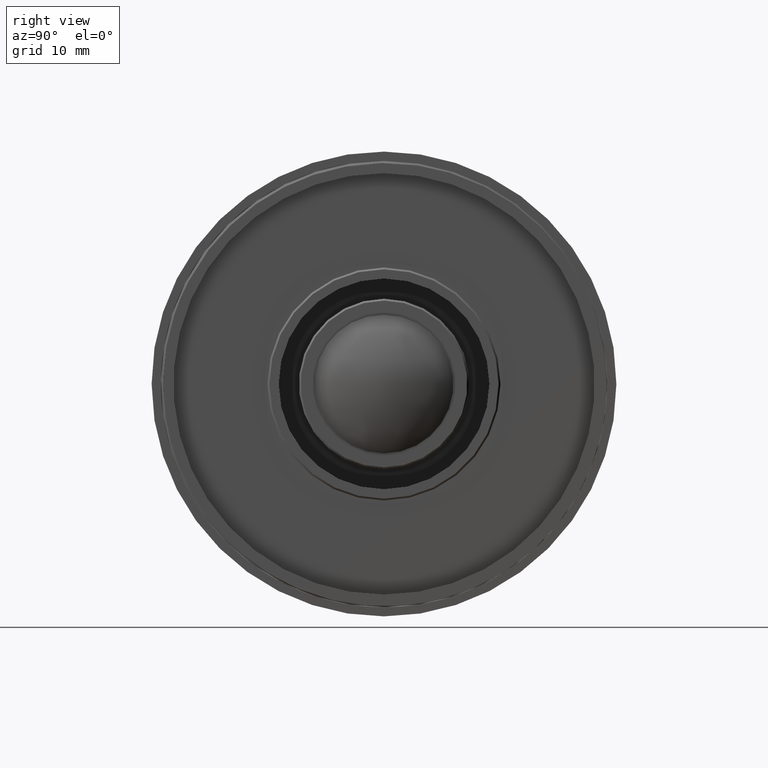
[diagram: clean part render]
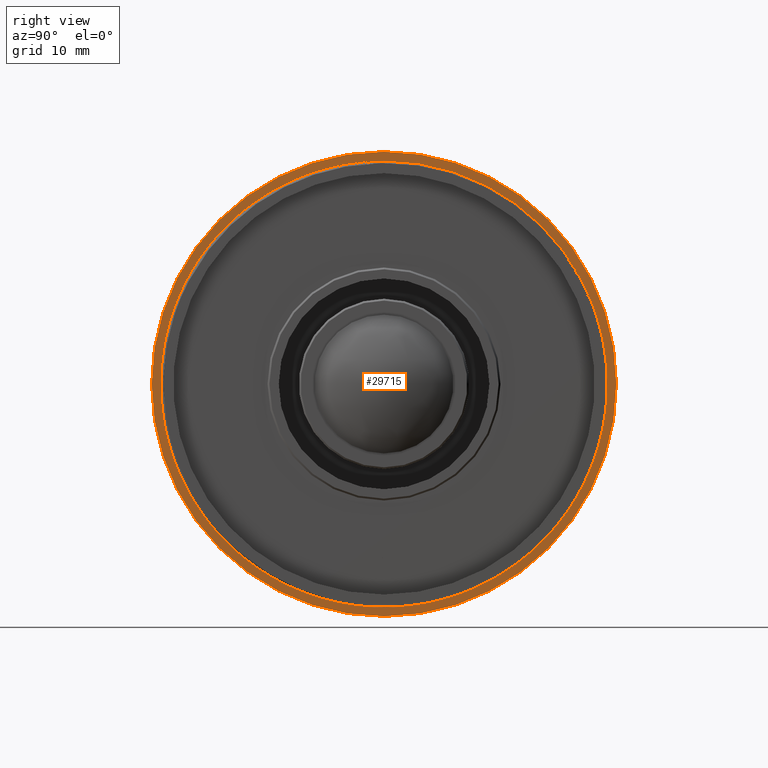
[diagram: same view with one face highlighted and labeled with its STEP entity id]
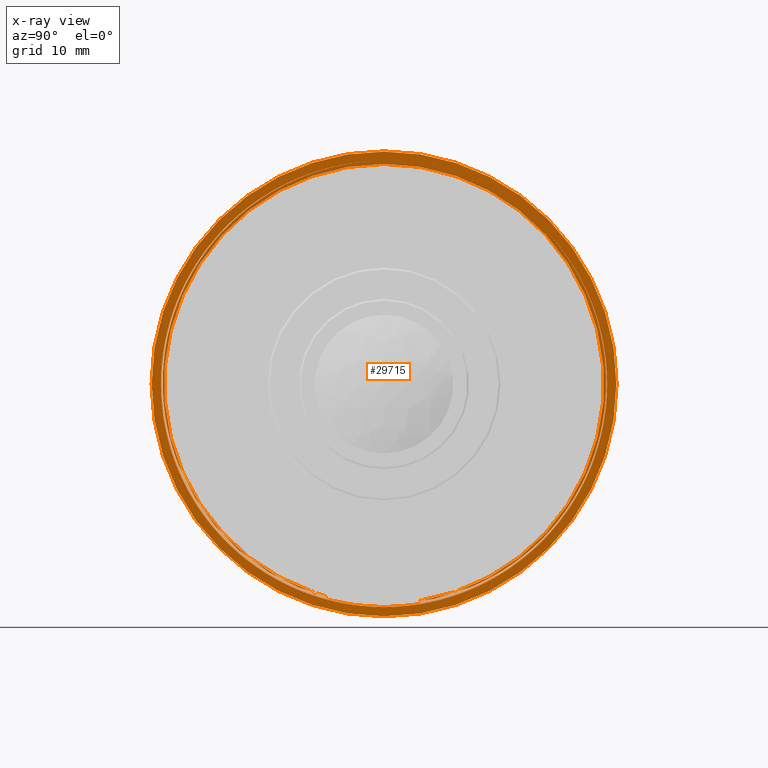
[diagram: x-ray of the same camera — body ghosted, the highlighted face saturated]
A machine part, right view. The second image highlights one B-rep face of the part: STEP entity #29715.
The next image is the same camera in x-ray: the body ghosted, the highlighted face saturated — about 0% of this face is hidden behind the body in this view.
In plain terms, the highlighted planar face has unit normal (1, 0, 0).
Its self-contained STEP definition (entity closure, byte-faithful):
#150 = CARTESIAN_POINT ( 'NONE',  ( 50.32999999999998408, 32.60243591752363557, -15.30176855147990089 ) ) ;
#246 = CARTESIAN_POINT ( 'NONE',  ( 50.33000000000001251, -35.69831763418071091, 0.8894241480180022918 ) ) ;
#468 = CARTESIAN_POINT ( 'NONE',  ( 50.32999999999998408, -10.21505518504810617, -34.52421739139822421 ) ) ;
#795 = CARTESIAN_POINT ( 'NONE',  ( 50.33000000000000540, -8.708740900243228111, -34.93462613268565065 ) ) ;
#1128 = CARTESIAN_POINT ( 'NONE',  ( 50.32999999999999829, 0.0000000000000000000, -35.50000000000000711 ) ) ;
#1232 = ORIENTED_EDGE ( 'NONE', *, *, #47392, .F. ) ;
#1331 = CARTESIAN_POINT ( 'NONE',  ( 50.33000000000000540, -9.287610554568027865, -34.46914747737436358 ) ) ;
#1655 = CARTESIAN_POINT ( 'NONE',  ( 50.32999999999998408, -30.98211070570011572, -17.61693842805589938 ) ) ;
#2231 = CARTESIAN_POINT ( 'NONE',  ( 50.32999999999996987, -22.83369519100609679, 27.66756858307160627 ) ) ;
#2347 = CARTESIAN_POINT ( 'NONE',  ( 50.32999999999999119, 5.877586541669145070, -35.15283090008690436 ) ) ;
#2405 = CARTESIAN_POINT ( 'NONE',  ( 50.32999999999999829, 0.0000000000000000000, 0.0000000000000000000 ) ) ;
#2561 = CARTESIAN_POINT ( 'NONE',  ( 50.33000000000004803, -23.94934097128642136, 26.71683049654951958 ) ) ;
#2596 = VERTEX_POINT ( 'NONE', #3539 ) ;
#2674 = CARTESIAN_POINT ( 'NONE',  ( 50.33000000000001961, -32.57709459099121574, -14.45690385471437800 ) ) ;
#3462 = CARTESIAN_POINT ( 'NONE',  ( 50.32999999999999829, 30.29935133001211867, 19.37588795850001944 ) ) ;
#3539 = CARTESIAN_POINT ( 'NONE',  ( 50.33000000000000540, 25.22265412673129603, 25.68691726936661723 ) ) ;
#3575 = CARTESIAN_POINT ( 'NONE',  ( 50.32999999999998408, -31.45211210986013839, 17.54480670472050363 ) ) ;
#3786 = CARTESIAN_POINT ( 'NONE',  ( 50.32999999999999119, 29.06633369213171392, 21.19980963006905839 ) ) ;
#3903 = CARTESIAN_POINT ( 'NONE',  ( 50.32999999999999119, -5.187172713117962353, 35.63955647911626556 ) ) ;
#4130 = CARTESIAN_POINT ( 'NONE',  ( 50.32999999999999119, 28.62774063836896943, 21.79489660202439438 ) ) ;
#4246 = CARTESIAN_POINT ( 'NONE',  ( 50.33000000000000540, -34.46657191301805057, -10.44649648376714879 ) ) ;
#4669 = CARTESIAN_POINT ( 'NONE',  ( 50.33000000000001961, -34.05381444449529482, -10.60545625632027722 ) ) ;
#4801 = CARTESIAN_POINT ( 'NONE',  ( 50.33000000000000540, 29.90167953364110431, 19.99088044002826692 ) ) ;
#4913 = CARTESIAN_POINT ( 'NONE',  ( 50.32999999999997698, 3.585874543063478637, -35.82472915941955449 ) ) ;
#5262 = CARTESIAN_POINT ( 'NONE',  ( 50.32999999999996987, -20.84876646178438975, -29.36669426149884998 ) ) ;
#5593 = CARTESIAN_POINT ( 'NONE',  ( 50.33000000000001961, -9.713880952067460939, -34.66858502949254017 ) ) ;
#5836 = VERTEX_POINT ( 'NONE', #19626 ) ;
#5918 = CARTESIAN_POINT ( 'NONE',  ( 50.32999999999998408, 32.14874173730459006, -16.23400929328099807 ) ) ;
#6671 = CARTESIAN_POINT ( 'NONE',  ( 50.32999999999998408, -26.52799247597928911, 24.10637200948370662 ) ) ;
#6780 = CARTESIAN_POINT ( 'NONE',  ( 50.32999999999998408, -26.13373737801839880, -24.21237255747889705 ) ) ;
#6968 = DIRECTION ( 'NONE',  ( -1.000000000000000000, -0.0000000000000000000, -0.0000000000000000000 ) ) ;
#7241 = CARTESIAN_POINT ( 'NONE',  ( 50.33000000000000540, 25.22265412673129603, 25.68691726936661723 ) ) ;
#7335 = CARTESIAN_POINT ( 'NONE',  ( 50.33000000000001251, -31.18791413586336958, 17.63039546032110039 ) ) ;
#7668 = CARTESIAN_POINT ( 'NONE',  ( 50.32999999999996987, -35.12949353575201172, 6.708193502426478716 ) ) ;
#7787 = CARTESIAN_POINT ( 'NONE',  ( 50.33000000000001961, -27.30175804125973826, -22.88714793218069943 ) ) ;
#8098 = CARTESIAN_POINT ( 'NONE',  ( 50.32999999999999829, 0.0000000000000000000, 36.00000000000000711 ) ) ;
#8328 = CARTESIAN_POINT ( 'NONE',  ( 50.33000000000002672, -32.83276844352158008, 14.77426854753329621 ) ) ;
#8670 = CARTESIAN_POINT ( 'NONE',  ( 50.32999999999999829, -25.92490240015546021, 24.98336651266490804 ) ) ;
#8900 = CARTESIAN_POINT ( 'NONE',  ( 50.32999999999999829, 35.83664717027834712, 1.395038644494448699 ) ) ;
#9014 = CARTESIAN_POINT ( 'NONE',  ( 50.33000000000001251, -21.31398089053566380, 29.08497393256907415 ) ) ;
#9230 = CARTESIAN_POINT ( 'NONE',  ( 50.32999999999999829, 27.25702670828985674, 23.53920086505407383 ) ) ;
#9345 = CARTESIAN_POINT ( 'NONE',  ( 50.32999999999999119, -26.63408036778779930, 24.22591442496967318 ) ) ;
#9569 = CARTESIAN_POINT ( 'NONE',  ( 50.33000000000000540, 25.22265412673129603, 25.68691726936661723 ) ) ;
#9681 = CARTESIAN_POINT ( 'NONE',  ( 50.32999999999999119, -4.155286865290507947, 35.77449654784077637 ) ) ;
#9907 = CARTESIAN_POINT ( 'NONE',  ( 50.33000000000001961, 18.43661360459694620, -30.52190872343918215 ) ) ;
#10023 = CARTESIAN_POINT ( 'NONE',  ( 50.33000000000001961, 31.96830976354789300, 16.56189577708198257 ) ) ;
#10350 = CARTESIAN_POINT ( 'NONE',  ( 50.32999999999998408, 30.62427050826570607, -18.95299220300609377 ) ) ;
#10438 = CARTESIAN_POINT ( 'NONE',  ( 50.32999999999999829, -35.22736956764985905, -5.617512267590866415 ) ) ;
#10693 = CARTESIAN_POINT ( 'NONE',  ( 50.32999999999999829, 35.85310650828556334, -3.408304114433827969 ) ) ;
#10878 = EDGE_CURVE ( 'NONE', #45979, #38284, #11217, .T. ) ;
#11025 = CARTESIAN_POINT ( 'NONE',  ( 50.32999999999999829, 14.03747124583531303, -33.15447780937213906 ) ) ;
#11217 = CIRCLE ( 'NONE', #16663, 37.50000000000000000 ) ;
#11350 = CARTESIAN_POINT ( 'NONE',  ( 50.32999999999998408, 35.43988009216003832, 6.347080231213405810 ) ) ;
#11409 = DIRECTION ( 'NONE',  ( 0.0000000000000000000, 0.0000000000000000000, -1.000000000000000000 ) ) ;
#11441 = CARTESIAN_POINT ( 'NONE',  ( 50.32999999999996987, -21.68804334877358286, 28.58474344426433333 ) ) ;
#12104 = CARTESIAN_POINT ( 'NONE',  ( 50.32999999999999829, 0.0000000000000000000, 36.00000000000000711 ) ) ;
#12185 = VERTEX_POINT ( 'NONE', #47429 ) ;
#12215 = CARTESIAN_POINT ( 'NONE',  ( 50.32999999999997698, -1.135275646560630625, -35.62226738851772723 ) ) ;
#12345 = CARTESIAN_POINT ( 'NONE',  ( 50.33000000000001961, 26.70966834101535525, 24.22677922262838024 ) ) ;
#12534 = CARTESIAN_POINT ( 'NONE',  ( 50.32999999999999119, -16.36771320702465715, -31.64348302953710856 ) ) ;
#12875 = CARTESIAN_POINT ( 'NONE',  ( 50.33000000000000540, -21.84120061359620024, -28.23647391621387825 ) ) ;
#13428 = CARTESIAN_POINT ( 'NONE',  ( 50.32999999999999119, -10.25605359819636142, 34.56926847914586887 ) ) ;
#13582 = ORIENTED_EDGE ( 'NONE', *, *, #16229, .F. ) ;
#13759 = CARTESIAN_POINT ( 'NONE',  ( 50.33000000000001251, -17.35901064532718863, 31.54259562640693915 ) ) ;
#14108 = CARTESIAN_POINT ( 'NONE',  ( 50.32999999999998408, -35.84756966938851264, 3.349459731285449049 ) ) ;
#14348 = CARTESIAN_POINT ( 'NONE',  ( 50.33000000000001961, 25.35438974666949008, -25.14246575182520615 ) ) ;
#14673 = CARTESIAN_POINT ( 'NONE',  ( 50.33000000000002672, 15.18223656313652903, -32.26681944619345899 ) ) ;
#15002 = CARTESIAN_POINT ( 'NONE',  ( 50.33000000000002672, 35.66019502124672158, -3.755551157891891645 ) ) ;
#15121 = CARTESIAN_POINT ( 'NONE',  ( 50.32999999999999119, 34.49088544055108940, -10.51812431019682670 ) ) ;
#15345 = CARTESIAN_POINT ( 'NONE',  ( 50.32999999999998408, 33.86505651898495017, -11.58121153805325498 ) ) ;
#15417 = ORIENTED_EDGE ( 'NONE', *, *, #45069, .F. ) ;
#15465 = CARTESIAN_POINT ( 'NONE',  ( 50.32999999999999119, 24.77997568318668797, -26.11936999349334698 ) ) ;
#15790 = CARTESIAN_POINT ( 'NONE',  ( 50.33000000000002672, 25.88366790606010781, -25.02602222662416764 ) ) ;
#16127 = CARTESIAN_POINT ( 'NONE',  ( 50.33000000000003382, -17.35732350193958240, -31.60702941658016840 ) ) ;
#16229 = EDGE_CURVE ( 'NONE', #39774, #5836, #53155, .T. ) ;
#16473 = CARTESIAN_POINT ( 'NONE',  ( 50.32999999999999119, -12.67134210665405369, -33.71194476522511962 ) ) ;
#16663 = AXIS2_PLACEMENT_3D ( 'NONE', #55709, #56709, #40003 ) ;
#16882 = CARTESIAN_POINT ( 'NONE',  ( 50.33000000000000540, -26.03105058154579510, 24.64803970850643111 ) ) ;
#16987 = CARTESIAN_POINT ( 'NONE',  ( 50.33000000000001961, -29.10001587017125502, -20.57714702442423516 ) ) ;
#17124 = CARTESIAN_POINT ( 'NONE',  ( 50.33000000000000540, 31.22118789138113115, 17.93063514272829906 ) ) ;
#17220 = CARTESIAN_POINT ( 'NONE',  ( 50.32999999999999119, -18.06764918487018434, 31.05397060754512850 ) ) ;
#17328 = ORIENTED_EDGE ( 'NONE', *, *, #46825, .F. ) ;
#17518 = AXIS2_PLACEMENT_3D ( 'NONE', #61469, #36590, #45817 ) ;
#17669 = CARTESIAN_POINT ( 'NONE',  ( 50.33000000000001961, -11.52333683948251064, -33.78744794512493854 ) ) ;
#18636 = EDGE_LOOP ( 'NONE', ( #61389, #1232 ) ) ;
#18874 = CARTESIAN_POINT ( 'NONE',  ( 50.32999999999999119, -2.083673690433180958, 35.95468420298143997 ) ) ;
#19093 = CARTESIAN_POINT ( 'NONE',  ( 50.32999999999997698, 34.54684520372774159, -9.484280387234386822 ) ) ;
#19205 = CARTESIAN_POINT ( 'NONE',  ( 50.32999999999999119, -35.68117382949858296, 4.891049061476323345 ) ) ;
#19309 = AXIS2_PLACEMENT_3D ( 'NONE', #2405, #33713, #58610 ) ;
#19447 = CARTESIAN_POINT ( 'NONE',  ( 50.32999999999997698, 20.29869234369541786, -29.33163012920678625 ) ) ;
#19555 = CARTESIAN_POINT ( 'NONE',  ( 50.32999999999997698, -35.90073499546835478, -3.370837825248653719 ) ) ;
#19626 = CARTESIAN_POINT ( 'NONE',  ( 50.32999999999999829, -33.02165648320664815, -13.35791741595008908 ) ) ;
#19792 = CARTESIAN_POINT ( 'NONE',  ( 50.33000000000001251, 23.77066631692493814, -26.65871281392265146 ) ) ;
#19901 = CARTESIAN_POINT ( 'NONE',  ( 50.32999999999999119, -30.66896781243448089, -18.88084612469142698 ) ) ;
#19907 = B_SPLINE_CURVE_WITH_KNOTS ( 'NONE', 3,
 ( #35557, #29441, #18874, #9681, #3903, #39639, #13428, #23992, #30446, #51236, #34209, #60436, #13759, #35233, #9014, #54985, #55339, #50904, #8670, #9345, #45106, #50228, #24664, #3575, #60778, #24339, #8328, #29098, #45449, #65872, #39978, #61122, #19205, #14108, #34887, #55685, #29779, #50566, #19555, #56022, #66220, #30107, #4246, #25008, #45791, #66562, #19901, #63118, #32127, #36240, #52246, #62784, #30787, #5262, #20582, #16127, #57028, #16473, #52900, #468, #5593, #795, #21237, #67230, #36902, #25680, #36566, #46465, #62132, #4913, #31805, #26029, #41344, #66887, #47141, #11025, #31473, #20232, #26689, #31121, #41674, #51903, #51570, #46811, #15465, #21571, #15790, #26368, #57358, #10350, #57701, #5918, #150, #42000, #15121, #52580, #62460, #20916, #10693, #35898, #47468, #37232, #42337, #58029, #11350, #46125, #25348, #40994, #61788, #56683, #10023, #48139, #17124, #37551, #22227, #22893, #12345, #7241 ),
 .UNSPECIFIED., .F., .F.,
 ( 4, 2, 2, 2, 2, 2, 2, 2, 2, 2, 2, 2, 2, 2, 2, 2, 2, 2, 2, 2, 2, 2, 2, 2, 2, 2, 2, 2, 2, 2, 2, 2, 2, 2, 2, 2, 2, 2, 2, 2, 2, 2, 2, 2, 2, 2, 2, 2, 2, 2, 2, 2, 2, 2, 2, 2, 2, 2, 4 ),
 ( 0.0000000000000000000, 0.003125604383837436370, 0.006251208767674872741, 0.01250241753534974548, 0.01562802191918718012, 0.01719082411110589570, 0.01875362630302460781, 0.02500483507069948055, 0.02813043945453690825, 0.02969324164645562383, 0.03125604383837433248, 0.03750725260604921563, 0.04063285698988666067, 0.04219565918180538666, 0.04375846137372410571, 0.05000967014139902356, 0.05313527452523648248, 0.05469807671715521541, 0.05626087890907394140, 0.06251208767674885924, 0.06563769206058631123, 0.06876329644442377709, 0.07501450521209870881, 0.07814010959593616079, 0.08126571397977362665, 0.08751692274744855837, 0.09064252713128602423, 0.09376813151512350397, 0.1000193402827984218, 0.1031449446666358877, 0.1047077468585546206, 0.1062705490504733674, 0.1125217578181482991, 0.1156473622019857928, 0.1172101643939045118, 0.1187729665858232725, 0.1250241753534982181, 0.1281497797373356562, 0.1297125819292543891, 0.1312753841211731498, 0.1375265928888480815, 0.1406521972726855751, 0.1422149994646043081, 0.1437778016565230410, 0.1500290104241979727, 0.1531546148080354386, 0.1562802191918729322, 0.1625314279595478639, 0.1656570323433853298, 0.1687826367272227679, 0.1750338454948977274, 0.1765966476868164603, 0.1781594498787351932, 0.1812850542625726591, 0.1875362630302475631, 0.1890990652221662960, 0.1906618674140850012, 0.1937874717979224393, 0.2000386805655973432 ),
 .UNSPECIFIED. ) ;
#20124 = CARTESIAN_POINT ( 'NONE',  ( 50.32999999999998408, 19.06820994612896669, -30.13622002419010926 ) ) ;
#20232 = CARTESIAN_POINT ( 'NONE',  ( 50.32999999999999119, 15.45994891511952929, -32.51552192566398247 ) ) ;
#20321 = CARTESIAN_POINT ( 'NONE',  ( 50.32999999999999119, -35.10151149963137129, -6.334334849441424886 ) ) ;
#20582 = CARTESIAN_POINT ( 'NONE',  ( 50.33000000000001251, -19.98749403402073810, -29.95947811900053637 ) ) ;
#20916 = CARTESIAN_POINT ( 'NONE',  ( 50.33000000000000540, 35.74069355729430697, -4.437039028833089205 ) ) ;
#21002 = CARTESIAN_POINT ( 'NONE',  ( 50.33000000000001251, -35.64032312870482855, 2.349058852405436326 ) ) ;
#21237 = CARTESIAN_POINT ( 'NONE',  ( 50.33000000000000540, -8.204995110479561760, -35.05631472861965392 ) ) ;
#21571 = CARTESIAN_POINT ( 'NONE',  ( 50.32999999999999119, 25.52170834886310047, -25.39509965863286212 ) ) ;
#21607 = AXIS2_PLACEMENT_3D ( 'NONE', #43398, #6968, #11409 ) ;
#22092 = CARTESIAN_POINT ( 'NONE',  ( 50.32999999999999119, -26.92054038180968334, -23.33443206415676485 ) ) ;
#22195 = CARTESIAN_POINT ( 'NONE',  ( 50.32999999999999829, 4.592425496802574367E-15, 37.50000000000000000 ) ) ;
#22227 = CARTESIAN_POINT ( 'NONE',  ( 50.33000000000000540, 29.85841232477226725, 20.13806775687694639 ) ) ;
#22652 = CARTESIAN_POINT ( 'NONE',  ( 50.33000000000001251, -15.51225998044405507, 32.42421717532391057 ) ) ;
#22893 = CARTESIAN_POINT ( 'NONE',  ( 50.33000000000001251, 28.05305911943760222, 22.65595092217614948 ) ) ;
#23100 = CARTESIAN_POINT ( 'NONE',  ( 50.33000000000001251, 2.375646668044285370, -35.56116184700336191 ) ) ;
#23158 = PLANE ( 'NONE',  #19309 ) ;
#23244 = CARTESIAN_POINT ( 'NONE',  ( 50.32999999999999119, 13.81476518091213990, -32.83315424357677159 ) ) ;
#23318 = CARTESIAN_POINT ( 'NONE',  ( 50.33000000000000540, -21.09917013674008146, 29.02716358816375219 ) ) ;
#23834 = FACE_BOUND ( 'NONE', #31605, .T. ) ;
#23992 = CARTESIAN_POINT ( 'NONE',  ( 50.33000000000000540, -13.15577419221521893, 33.52582355515714596 ) ) ;
#24118 = VERTEX_POINT ( 'NONE', #1128 ) ;
#24339 = CARTESIAN_POINT ( 'NONE',  ( 50.32999999999999829, -32.61687514176797009, 15.24487451823336137 ) ) ;
#24551 = CARTESIAN_POINT ( 'NONE',  ( 50.32999999999999119, 33.80585117315199284, 12.15414401676753187 ) ) ;
#24664 = CARTESIAN_POINT ( 'NONE',  ( 50.32999999999996987, -29.87438165211030849, 20.19266487645746722 ) ) ;
#25008 = CARTESIAN_POINT ( 'NONE',  ( 50.32999999999999829, -33.47959126668772711, -13.39449295411900209 ) ) ;
#25241 = CARTESIAN_POINT ( 'NONE',  ( 50.32999999999998408, 26.86492048080394213, -23.53979487150093064 ) ) ;
#25348 = CARTESIAN_POINT ( 'NONE',  ( 50.32999999999999119, 34.90167980543996151, 8.884450527709487844 ) ) ;
#25680 = CARTESIAN_POINT ( 'NONE',  ( 50.32999999999998408, -0.5584084804779854139, -36.01037488546288046 ) ) ;
#26029 = CARTESIAN_POINT ( 'NONE',  ( 50.32999999999999829, 6.661833460414879227, -35.43851147855289696 ) ) ;
#26368 = CARTESIAN_POINT ( 'NONE',  ( 50.33000000000002672, 27.64958433565562146, -23.14643234290208795 ) ) ;
#26459 = CARTESIAN_POINT ( 'NONE',  ( 50.32999999999999829, -35.65803453666013922, -2.016731599884825421 ) ) ;
#26689 = CARTESIAN_POINT ( 'NONE',  ( 50.33000000000001251, 15.92555179410339683, -32.28998595367593794 ) ) ;
#26815 = DIRECTION ( 'NONE',  ( 0.0000000000000000000, 0.0000000000000000000, -1.000000000000000000 ) ) ;
#27212 = CARTESIAN_POINT ( 'NONE',  ( 50.32999999999997698, 1.206543077833576616, -35.61992474015153221 ) ) ;
#27534 = CARTESIAN_POINT ( 'NONE',  ( 50.33000000000001251, -30.38635066022879272, -18.62524085381457084 ) ) ;
#28199 = CARTESIAN_POINT ( 'NONE',  ( 50.32999999999999119, 13.81476518091213990, -32.83315424357677159 ) ) ;
#28438 = CARTESIAN_POINT ( 'NONE',  ( 50.33000000000000540, -19.30508417097220430, 30.29115670802871563 ) ) ;
#28547 = CARTESIAN_POINT ( 'NONE',  ( 50.32999999999999829, -33.02165648320664815, -13.35791741595008908 ) ) ;
#29098 = CARTESIAN_POINT ( 'NONE',  ( 50.33000000000004803, -33.24527301001569413, 13.82105340667126647 ) ) ;
#29328 = CARTESIAN_POINT ( 'NONE',  ( 50.32999999999999829, 33.00812656707364567, 14.20718858905741655 ) ) ;
#29441 = CARTESIAN_POINT ( 'NONE',  ( 50.33000000000001251, -1.042019000428424214, 36.00000000000001421 ) ) ;
#29667 = CARTESIAN_POINT ( 'NONE',  ( 50.32999999999999119, 34.69691237798133443, 9.337273750055775423 ) ) ;
#29715 = ADVANCED_FACE ( 'NONE', ( #23834, #44266, #33371 ), #23158, .T. ) ;
#29779 = CARTESIAN_POINT ( 'NONE',  ( 50.33000000000002672, -35.98117032992682596, 1.274495961026331337 ) ) ;
#29845 = AXIS2_PLACEMENT_3D ( 'NONE', #36693, #58153, #26815 ) ;
#29993 = CARTESIAN_POINT ( 'NONE',  ( 50.32999999999999829, 26.27292800183653654, 24.64435403088329224 ) ) ;
#30107 = CARTESIAN_POINT ( 'NONE',  ( 50.32999999999999119, -34.75523503730238417, -9.441600440179032105 ) ) ;
#30337 = CARTESIAN_POINT ( 'NONE',  ( 50.32999999999999829, 32.11071831270864152, 16.20776320437300555 ) ) ;
#30446 = CARTESIAN_POINT ( 'NONE',  ( 50.32999999999999829, -14.10774270879716319, 33.13662258606523636 ) ) ;
#30677 = CARTESIAN_POINT ( 'NONE',  ( 50.32999999999999829, 32.78131805089967798, -14.32607798809472577 ) ) ;
#30787 = CARTESIAN_POINT ( 'NONE',  ( 50.32999999999997698, -22.50345630838719657, -28.11882374856536160 ) ) ;
#31121 = CARTESIAN_POINT ( 'NONE',  ( 50.33000000000001251, 18.22342220178648731, -31.11541689612358752 ) ) ;
#31473 = CARTESIAN_POINT ( 'NONE',  ( 50.32999999999999829, 14.51649538631497549, -32.94754237049461665 ) ) ;
#31605 = EDGE_LOOP ( 'NONE', ( #15417, #13582, #17328, #34033 ) ) ;
#31805 = CARTESIAN_POINT ( 'NONE',  ( 50.32999999999999829, 4.100692802034322959, -35.76941537260161397 ) ) ;
#32127 = CARTESIAN_POINT ( 'NONE',  ( 50.32999999999997698, -28.92224162887567118, -21.46103319226720885 ) ) ;
#33338 = ORIENTED_EDGE ( 'NONE', *, *, #37620, .T. ) ;
#33371 = FACE_OUTER_BOUND ( 'NONE', #18636, .T. ) ;
#33548 = CARTESIAN_POINT ( 'NONE',  ( 50.32999999999999119, -34.07882348591672894, 10.92859891613139212 ) ) ;
#33651 = CARTESIAN_POINT ( 'NONE',  ( 50.33000000000002672, -17.92660963082937897, -30.80411691409396724 ) ) ;
#33713 = DIRECTION ( 'NONE',  ( 1.000000000000000000, 0.0000000000000000000, 0.0000000000000000000 ) ) ;
#34033 = ORIENTED_EDGE ( 'NONE', *, *, #35899, .F. ) ;
#34209 = CARTESIAN_POINT ( 'NONE',  ( 50.33000000000001961, -15.97839580160171913, 32.26390448366354491 ) ) ;
#34584 = B_SPLINE_CURVE_WITH_KNOTS ( 'NONE', 3,
 ( #9569, #29993, #9230, #4130, #3786, #4801, #3462, #41228, #30337, #29328, #35446, #24551, #66781, #29667, #40556, #45327, #66104, #8900, #35787, #62014, #61663, #15002, #61011, #19093, #15345, #36132, #55907, #30677, #39857, #35123, #50780, #25241, #45678, #14348, #19792, #56228, #61338, #19447, #20124, #9907, #66445, #14673, #51125 ),
 .UNSPECIFIED., .F., .F.,
 ( 4, 2, 2, 2, 2, 2, 2, 2, 2, 2, 2, 1, 2, 2, 2, 2, 2, 2, 2, 2, 2, 4 ),
 ( 8.856608578696836119E-16, 0.004439199315945770857, 0.006658798973918209595, 0.008878398631890650067, 0.01331759794783551540, 0.01553719760580794633, 0.01775679726378037379, 0.02219599657972523218, 0.02663519589567009058, 0.02885479555364252324, 0.03107439521161495244, 0.03551359452755981777, 0.03995279384350468310, 0.04217239350147711924, 0.04439199315944955537, 0.05327039179133929991, 0.05548999144931174299, 0.05770959110728418606, 0.06214879042322905833, 0.06436839008120148753, 0.06658798973917393060, 0.07102718905511880287 ),
 .UNSPECIFIED. ) ;
#34887 = CARTESIAN_POINT ( 'NONE',  ( 50.32999999999999829, -35.89210853602222073, 2.833159739550866085 ) ) ;
#35123 = CARTESIAN_POINT ( 'NONE',  ( 50.32999999999997698, 29.68081820511738655, -20.11832247479168601 ) ) ;
#35233 = CARTESIAN_POINT ( 'NONE',  ( 50.33000000000001961, -19.61929114071003610, 30.25579029055072056 ) ) ;
#35446 = CARTESIAN_POINT ( 'NONE',  ( 50.32999999999999829, 33.28746380292110985, 13.52990896810396748 ) ) ;
#35557 = CARTESIAN_POINT ( 'NONE',  ( 50.32999999999999829, 0.0000000000000000000, 36.00000000000000711 ) ) ;
#35787 = CARTESIAN_POINT ( 'NONE',  ( 50.32999999999999829, 35.85368574509490003, 0.6602781313436164590 ) ) ;
#35898 = CARTESIAN_POINT ( 'NONE',  ( 50.32999999999999829, 36.05748602286438143, -0.3237817701429697159 ) ) ;
#35899 = EDGE_CURVE ( 'NONE', #51256, #2596, #19907, .T. ) ;
#36132 = CARTESIAN_POINT ( 'NONE',  ( 50.32999999999999829, 33.61453348231361105, -12.27811399794368441 ) ) ;
#36240 = CARTESIAN_POINT ( 'NONE',  ( 50.32999999999999829, -27.00037169101581824, -23.90121240903165756 ) ) ;
#36330 = CARTESIAN_POINT ( 'NONE',  ( 50.32999999999999829, -33.58027218658278201, -11.99760447745377334 ) ) ;
#36559 = B_SPLINE_CURVE_WITH_KNOTS ( 'NONE', 3,
 ( #62550, #36330, #4669, #57116, #46213, #20321, #10438, #52341, #26459, #46900, #246, #21002, #47235, #41093, #7668, #64862, #33548, #49222, #63864, #42763, #43431, #7335, #37645, #48554, #58441, #6671, #16882, #43760, #2561, #2231, #11441, #23318, #28438, #17220, #22652, #43087, #37974, #53654, #64196, #58772, #12104 ),
 .UNSPECIFIED., .F., .F.,
 ( 4, 2, 2, 2, 2, 2, 2, 2, 2, 2, 2, 2, 2, 2, 1, 2, 2, 2, 2, 2, 4 ),
 ( 2.222386600796088872E-15, 0.004411220929863970963, 0.006616831394794845354, 0.008822441859725719746, 0.01323366278958746853, 0.01543927325451834205, 0.01764488371944921904, 0.02205610464931096609, 0.02646732557917272008, 0.02867293604410359881, 0.03087854650903447754, 0.03528976743889622458, 0.03970098836875798204, 0.04190659883368886424, 0.04411220929861974643, 0.04631781976355062863, 0.04852343022848151083, 0.05293465115834326828, 0.05734587208820503268, 0.06175709301806679707, 0.07057953487779032586 ),
 .UNSPECIFIED. ) ;
#36566 = CARTESIAN_POINT ( 'NONE',  ( 50.33000000000001251, 0.4741825387615390408, -36.01184488006579443 ) ) ;
#36590 = DIRECTION ( 'NONE',  ( -1.000000000000000000, -0.0000000000000000000, -0.0000000000000000000 ) ) ;
#36693 = CARTESIAN_POINT ( 'NONE',  ( 50.32999999999999829, 0.0000000000000000000, 0.0000000000000000000 ) ) ;
#36902 = CARTESIAN_POINT ( 'NONE',  ( 50.32999999999999829, -3.642523774033774586, -35.87433202508694308 ) ) ;
#37232 = CARTESIAN_POINT ( 'NONE',  ( 50.32999999999996987, 35.74657300121729975, 4.295182562875433874 ) ) ;
#37551 = CARTESIAN_POINT ( 'NONE',  ( 50.32999999999999119, 30.42504399525022052, 19.27168123878541550 ) ) ;
#37620 = EDGE_CURVE ( 'NONE', #12185, #24118, #60278, .T. ) ;
#37645 = CARTESIAN_POINT ( 'NONE',  ( 50.33000000000001251, -30.45331349077753202, 18.88335982132493385 ) ) ;
#37974 = CARTESIAN_POINT ( 'NONE',  ( 50.33000000000001961, -11.47648268612512368, 34.08844117507958771 ) ) ;
#38084 = CARTESIAN_POINT ( 'NONE',  ( 50.33000000000001251, -6.408278436957052904, -35.04486556188983570 ) ) ;
#38284 = VERTEX_POINT ( 'NONE', #22195 ) ;
#38745 = CARTESIAN_POINT ( 'NONE',  ( 50.32999999999999829, -15.83791575106098115, -31.91195852962785295 ) ) ;
#39084 = CARTESIAN_POINT ( 'NONE',  ( 50.33000000000000540, 9.346165075701323488, -34.39346946270156025 ) ) ;
#39177 = ORIENTED_EDGE ( 'NONE', *, *, #52646, .T. ) ;
#39639 = CARTESIAN_POINT ( 'NONE',  ( 50.32999999999998408, -8.264823290401132283, 35.10030887490559337 ) ) ;
#39774 = VERTEX_POINT ( 'NONE', #23244 ) ;
#39857 = CARTESIAN_POINT ( 'NONE',  ( 50.32999999999999119, 31.22912094060296795, -17.64366072476636305 ) ) ;
#39978 = CARTESIAN_POINT ( 'NONE',  ( 50.32999999999998408, -34.93424405690260670, 8.934330573080462301 ) ) ;
#40003 = DIRECTION ( 'NONE',  ( 0.0000000000000000000, 0.0000000000000000000, -1.000000000000000000 ) ) ;
#40556 = CARTESIAN_POINT ( 'NONE',  ( 50.32999999999999119, 35.04022932532591028, 7.913256727920844114 ) ) ;
#40994 = CARTESIAN_POINT ( 'NONE',  ( 50.33000000000000540, 34.05416205581136779, 11.85566971366987765 ) ) ;
#41093 = CARTESIAN_POINT ( 'NONE',  ( 50.32999999999996277, -35.36602579348041075, 5.271919212007118993 ) ) ;
#41228 = CARTESIAN_POINT ( 'NONE',  ( 50.32999999999998408, 31.43334210993565492, 17.49984204122362641 ) ) ;
#41344 = CARTESIAN_POINT ( 'NONE',  ( 50.32999999999997698, 8.669587611187537846, -35.00110660263127471 ) ) ;
#41674 = CARTESIAN_POINT ( 'NONE',  ( 50.33000000000000540, 19.96591755092899234, -30.02674251379566073 ) ) ;
#42000 = CARTESIAN_POINT ( 'NONE',  ( 50.32999999999999119, 33.83587429377467970, -12.46536822613169981 ) ) ;
#42337 = CARTESIAN_POINT ( 'NONE',  ( 50.32999999999999119, 35.68125201558219572, 4.808011116824111753 ) ) ;
#42763 = CARTESIAN_POINT ( 'NONE',  ( 50.32999999999998408, -32.48972102008705320, 15.00942486540563081 ) ) ;
#43087 = CARTESIAN_POINT ( 'NONE',  ( 50.32999999999999829, -14.19430264499490235, 33.03164382834357582 ) ) ;
#43398 = CARTESIAN_POINT ( 'NONE',  ( 50.32999999999999829, 0.0000000000000000000, 0.0000000000000000000 ) ) ;
#43431 = CARTESIAN_POINT ( 'NONE',  ( 50.32999999999999829, -32.17762742305222901, 15.67574998448420587 ) ) ;
#43760 = CARTESIAN_POINT ( 'NONE',  ( 50.33000000000000540, -25.00523659618699668, 25.69925898377944762 ) ) ;
#43871 = CARTESIAN_POINT ( 'NONE',  ( 50.33000000000001961, 11.60615399637252665, -33.69805235791128695 ) ) ;
#44266 = FACE_BOUND ( 'NONE', #45969, .T. ) ;
#45069 = EDGE_CURVE ( 'NONE', #5836, #51256, #36559, .T. ) ;
#45106 = CARTESIAN_POINT ( 'NONE',  ( 50.33000000000001251, -26.98238411533611014, 23.83738590134450774 ) ) ;
#45327 = CARTESIAN_POINT ( 'NONE',  ( 50.32999999999998408, 35.55111593110115820, 5.039361829303659057 ) ) ;
#45449 = CARTESIAN_POINT ( 'NONE',  ( 50.33000000000002672, -33.44213718874807739, 13.33765105951134089 ) ) ;
#45678 = CARTESIAN_POINT ( 'NONE',  ( 50.32999999999998408, 25.86775889775862325, -24.61988323657935851 ) ) ;
#45791 = CARTESIAN_POINT ( 'NONE',  ( 50.32999999999999119, -32.66064688449365860, -15.28101732864356777 ) ) ;
#45817 = DIRECTION ( 'NONE',  ( 0.0000000000000000000, 0.0000000000000000000, -1.000000000000000000 ) ) ;
#45969 = EDGE_LOOP ( 'NONE', ( #39177, #33338 ) ) ;
#45979 = VERTEX_POINT ( 'NONE', #59298 ) ;
#46125 = CARTESIAN_POINT ( 'NONE',  ( 50.32999999999999119, 35.14264342227487248, 7.878878532342264762 ) ) ;
#46213 = CARTESIAN_POINT ( 'NONE',  ( 50.33000000000000540, -34.80486222458725365, -7.764209423799387721 ) ) ;
#46465 = CARTESIAN_POINT ( 'NONE',  ( 50.33000000000001251, 2.030081612466595242, -35.94646330076468388 ) ) ;
#46811 = CARTESIAN_POINT ( 'NONE',  ( 50.33000000000002672, 24.39933662828264005, -26.47532698831808062 ) ) ;
#46825 = EDGE_CURVE ( 'NONE', #2596, #39774, #34584, .T. ) ;
#46900 = CARTESIAN_POINT ( 'NONE',  ( 50.32999999999999829, -35.70482692873102337, 0.1614938853392404727 ) ) ;
#47141 = CARTESIAN_POINT ( 'NONE',  ( 50.32999999999999829, 12.59337362371778823, -33.74147198823221316 ) ) ;
#47235 = CARTESIAN_POINT ( 'NONE',  ( 50.32999999999997698, -35.58855634046704353, 3.083219584090284737 ) ) ;
#47392 = EDGE_CURVE ( 'NONE', #38284, #45979, #65121, .T. ) ;
#47429 = CARTESIAN_POINT ( 'NONE',  ( 50.32999999999999829, 4.347496136973104070E-15, 35.50000000000000711 ) ) ;
#47468 = CARTESIAN_POINT ( 'NONE',  ( 50.32999999999998408, 36.01753924456524913, 1.730335240003292752 ) ) ;
#48004 = CARTESIAN_POINT ( 'NONE',  ( 50.32999999999997698, 8.200492012023136823, -34.68457113192637564 ) ) ;
#48139 = CARTESIAN_POINT ( 'NONE',  ( 50.33000000000001251, 31.47771955296192203, 17.47633807793142324 ) ) ;
#48329 = CARTESIAN_POINT ( 'NONE',  ( 50.33000000000003382, -28.40943889736789529, -21.52074924880727025 ) ) ;
#48554 = CARTESIAN_POINT ( 'NONE',  ( 50.33000000000000540, -28.83902147276013039, 21.29203483354412185 ) ) ;
#48997 = CARTESIAN_POINT ( 'NONE',  ( 50.32999999999999119, 12.72205224344952867, -33.29292038511768226 ) ) ;
#49222 = CARTESIAN_POINT ( 'NONE',  ( 50.32999999999999119, -33.33882610849132533, 12.98315405180052018 ) ) ;
#49329 = CARTESIAN_POINT ( 'NONE',  ( 50.32999999999999119, -23.64604327706953413, -26.74558102979763063 ) ) ;
#50228 = CARTESIAN_POINT ( 'NONE',  ( 50.33000000000001251, -28.67429913873528946, 21.86560942248960160 ) ) ;
#50566 = CARTESIAN_POINT ( 'NONE',  ( 50.33000000000001961, -36.03562446495654115, -1.317991530582028004 ) ) ;
#50780 = CARTESIAN_POINT ( 'NONE',  ( 50.32999999999999119, 27.35024450731724954, -22.98036297873700207 ) ) ;
#50904 = CARTESIAN_POINT ( 'NONE',  ( 50.32999999999999829, -25.56322327613626655, 25.35326399214930149 ) ) ;
#51125 = CARTESIAN_POINT ( 'NONE',  ( 50.32999999999999119, 13.81476518091213990, -32.83315424357677159 ) ) ;
#51236 = CARTESIAN_POINT ( 'NONE',  ( 50.33000000000001251, -15.51350955933103748, 32.48995323695898207 ) ) ;
#51256 = VERTEX_POINT ( 'NONE', #8098 ) ;
#51570 = CARTESIAN_POINT ( 'NONE',  ( 50.33000000000002672, 23.23667927163797842, -27.51615897216583306 ) ) ;
#51903 = CARTESIAN_POINT ( 'NONE',  ( 50.32999999999999829, 22.43692676597139624, -28.17170743331874405 ) ) ;
#52246 = CARTESIAN_POINT ( 'NONE',  ( 50.32999999999999829, -25.59365036768572210, -25.40068515821400297 ) ) ;
#52341 = CARTESIAN_POINT ( 'NONE',  ( 50.32999999999999119, -35.53865459805603422, -3.461481829174488212 ) ) ;
#52580 = CARTESIAN_POINT ( 'NONE',  ( 50.33000000000001251, 35.22245188977171892, -7.512783255372802671 ) ) ;
#52646 = EDGE_CURVE ( 'NONE', #24118, #12185, #58853, .T. ) ;
#52900 = CARTESIAN_POINT ( 'NONE',  ( 50.32999999999999119, -11.70038971002306027, -34.06136574363971192 ) ) ;
#53155 = B_SPLINE_CURVE_WITH_KNOTS ( 'NONE', 3,
 ( #28199, #48997, #43871, #39084, #48004, #2347, #59880, #23100, #27212, #12215, #53442, #64311, #64644, #59546, #38084, #1331, #17669, #53761, #59209, #38745, #12534, #33651, #63633, #12875, #49329, #54432, #6780, #22092, #7787, #48329, #16987, #27534, #1655, #58886, #2674, #28547 ),
 .UNSPECIFIED., .F., .F.,
 ( 4, 2, 2, 2, 2, 2, 2, 2, 2, 2, 2, 2, 2, 2, 2, 2, 2, 4 ),
 ( 3.222852918040692922E-15, 0.003556452294768998150, 0.007112904589534774051, 0.01066935688430055082, 0.01422580917906632499, 0.01778226147383209915, 0.01956048762121498710, 0.02133871376859787852, 0.02845161835812941645, 0.03022984450551230787, 0.03200807065289518888, 0.03556452294766097172, 0.04267742753719253740, 0.04445565368457542188, 0.04623387983195829942, 0.04979033212672407532, 0.05334678442148985122, 0.05690323671625561325 ),
 .UNSPECIFIED. ) ;
#53442 = CARTESIAN_POINT ( 'NONE',  ( 50.33000000000000540, -2.307990619719714864, -35.56585227929464565 ) ) ;
#53654 = CARTESIAN_POINT ( 'NONE',  ( 50.32999999999999829, -10.06921511913783895, 34.53881032504616400 ) ) ;
#53761 = CARTESIAN_POINT ( 'NONE',  ( 50.33000000000004093, -14.23338733825058355, -32.65913559731760074 ) ) ;
#54432 = CARTESIAN_POINT ( 'NONE',  ( 50.32999999999998408, -25.72701334939819873, -24.64415540751295808 ) ) ;
#54985 = CARTESIAN_POINT ( 'NONE',  ( 50.33000000000001251, -23.69204326730264398, 27.12457296134531148 ) ) ;
#55339 = CARTESIAN_POINT ( 'NONE',  ( 50.33000000000001251, -24.45724504144616418, 26.43688109946965881 ) ) ;
#55685 = CARTESIAN_POINT ( 'NONE',  ( 50.32999999999998408, -35.95894976765022477, 1.795600422983395283 ) ) ;
#55709 = CARTESIAN_POINT ( 'NONE',  ( 50.32999999999999829, 0.0000000000000000000, 0.0000000000000000000 ) ) ;
#55907 = CARTESIAN_POINT ( 'NONE',  ( 50.33000000000001251, 33.07231592179237367, -13.65118333950671214 ) ) ;
#56022 = CARTESIAN_POINT ( 'NONE',  ( 50.32999999999996987, -35.43796772235235437, -6.419250261849546391 ) ) ;
#56228 = CARTESIAN_POINT ( 'NONE',  ( 50.33000000000002672, 22.65685780381405223, -27.60106785743560565 ) ) ;
#56683 = CARTESIAN_POINT ( 'NONE',  ( 50.32999999999998408, 32.20296513410449535, 16.10079044203695275 ) ) ;
#56709 = DIRECTION ( 'NONE',  ( -1.000000000000000000, -0.0000000000000000000, -0.0000000000000000000 ) ) ;
#57028 = CARTESIAN_POINT ( 'NONE',  ( 50.32999999999999829, -15.52780243839490559, -32.54412195749009129 ) ) ;
#57116 = CARTESIAN_POINT ( 'NONE',  ( 50.33000000000002672, -34.63365698457457853, -8.478727411715404116 ) ) ;
#57358 = CARTESIAN_POINT ( 'NONE',  ( 50.32999999999996987, 28.92285742533239201, -21.53406020230422868 ) ) ;
#57701 = CARTESIAN_POINT ( 'NONE',  ( 50.32999999999998408, 31.15647226493716815, -18.06540586398337211 ) ) ;
#58029 = CARTESIAN_POINT ( 'NONE',  ( 50.32999999999999119, 35.52802229867888428, 5.833382195910707502 ) ) ;
#58153 = DIRECTION ( 'NONE',  ( -1.000000000000000000, -0.0000000000000000000, -0.0000000000000000000 ) ) ;
#58441 = CARTESIAN_POINT ( 'NONE',  ( 50.32999999999999119, -27.95919524610794937, 22.44765509287297789 ) ) ;
#58610 = DIRECTION ( 'NONE',  ( 0.0000000000000000000, 0.0000000000000000000, -1.000000000000000000 ) ) ;
#58772 = CARTESIAN_POINT ( 'NONE',  ( 50.33000000000000540, -2.940861549756067728, 35.98570414524425587 ) ) ;
#58853 = CIRCLE ( 'NONE', #17518, 35.50000000000000711 ) ;
#58886 = CARTESIAN_POINT ( 'NONE',  ( 50.32999999999999829, -32.07695695922078727, -15.53436627592084918 ) ) ;
#59209 = CARTESIAN_POINT ( 'NONE',  ( 50.32999999999999829, -14.77112851078068978, -32.41953785994480342 ) ) ;
#59298 = CARTESIAN_POINT ( 'NONE',  ( 50.32999999999999829, 0.0000000000000000000, -37.50000000000000000 ) ) ;
#59546 = CARTESIAN_POINT ( 'NONE',  ( 50.33000000000000540, -5.828139721301854870, -35.14606292674292831 ) ) ;
#59880 = CARTESIAN_POINT ( 'NONE',  ( 50.33000000000001251, 4.710221958820571153, -35.32780403731318586 ) ) ;
#60278 = CIRCLE ( 'NONE', #29845, 35.50000000000000711 ) ;
#60436 = CARTESIAN_POINT ( 'NONE',  ( 50.33000000000001251, -16.90065300661054692, 31.79051105084273487 ) ) ;
#60778 = CARTESIAN_POINT ( 'NONE',  ( 50.32999999999999829, -31.94074571398894946, 16.63898240866150502 ) ) ;
#61011 = CARTESIAN_POINT ( 'NONE',  ( 50.33000000000006224, 35.27772160148334279, -6.653757993577565699 ) ) ;
#61122 = CARTESIAN_POINT ( 'NONE',  ( 50.32999999999998408, -35.52659778335861773, 5.909041173789324475 ) ) ;
#61338 = CARTESIAN_POINT ( 'NONE',  ( 50.33000000000001251, 20.89913969640643288, -28.91186703611446873 ) ) ;
#61389 = ORIENTED_EDGE ( 'NONE', *, *, #10878, .F. ) ;
#61469 = CARTESIAN_POINT ( 'NONE',  ( 50.32999999999999829, 0.0000000000000000000, 0.0000000000000000000 ) ) ;
#61663 = CARTESIAN_POINT ( 'NONE',  ( 50.33000000000000540, 35.81342519299606408, -1.555936648171216019 ) ) ;
#61788 = CARTESIAN_POINT ( 'NONE',  ( 50.32999999999999829, 33.32387244755120292, 13.77614553084952931 ) ) ;
#62014 = CARTESIAN_POINT ( 'NONE',  ( 50.33000000000000540, 35.84215882886348226, -0.8159534400381212027 ) ) ;
#62132 = CARTESIAN_POINT ( 'NONE',  ( 50.32999999999999119, 2.550971365872600316, -35.91326023455479799 ) ) ;
#62460 = CARTESIAN_POINT ( 'NONE',  ( 50.32999999999998408, 35.42443798144373801, -6.495666632352174119 ) ) ;
#62550 = CARTESIAN_POINT ( 'NONE',  ( 50.32999999999999829, -33.02165648320664815, -13.35791741595008908 ) ) ;
#62784 = CARTESIAN_POINT ( 'NONE',  ( 50.33000000000001251, -23.29918049356674459, -27.46280438594557793 ) ) ;
#63118 = CARTESIAN_POINT ( 'NONE',  ( 50.32999999999997698, -29.53316449216868023, -20.61223258511614986 ) ) ;
#63633 = CARTESIAN_POINT ( 'NONE',  ( 50.33000000000000540, -18.93083331471706288, -30.19694507423190899 ) ) ;
#63864 = CARTESIAN_POINT ( 'NONE',  ( 50.32999999999998408, -33.07053759412124805, 13.66240044006560872 ) ) ;
#64196 = CARTESIAN_POINT ( 'NONE',  ( 50.33000000000001251, -5.825302682168189250, 35.61565404808056456 ) ) ;
#64311 = CARTESIAN_POINT ( 'NONE',  ( 50.32999999999999829, -4.069836604294501115, -35.39277346037407312 ) ) ;
#64644 = CARTESIAN_POINT ( 'NONE',  ( 50.32999999999999829, -4.659156763496469011, -35.32003978076404849 ) ) ;
#64862 = CARTESIAN_POINT ( 'NONE',  ( 50.32999999999998408, -34.48589953049562240, 9.536535207622499399 ) ) ;
#65121 = CIRCLE ( 'NONE', #21607, 37.50000000000000000 ) ;
#65872 = CARTESIAN_POINT ( 'NONE',  ( 50.33000000000004093, -34.36880334641227108, 10.91315559849332395 ) ) ;
#66104 = CARTESIAN_POINT ( 'NONE',  ( 50.33000000000001251, 35.71867080680202378, 3.589481777572981258 ) ) ;
#66220 = CARTESIAN_POINT ( 'NONE',  ( 50.32999999999999829, -35.24006342092985022, -7.430216111188365780 ) ) ;
#66445 = CARTESIAN_POINT ( 'NONE',  ( 50.33000000000000540, 16.50858509297818699, -31.61812108263538335 ) ) ;
#66562 = CARTESIAN_POINT ( 'NONE',  ( 50.32999999999997698, -31.19651564910295249, -17.99539518135810923 ) ) ;
#66781 = CARTESIAN_POINT ( 'NONE',  ( 50.32999999999999829, 34.04561069181881550, 11.45323915198421183 ) ) ;
#66887 = CARTESIAN_POINT ( 'NONE',  ( 50.32999999999998408, 11.62010744059686651, -34.08860375929454278 ) ) ;
#67230 = CARTESIAN_POINT ( 'NONE',  ( 50.32999999999999829, -5.680488976845821547, -35.60907747786208688 ) ) ;